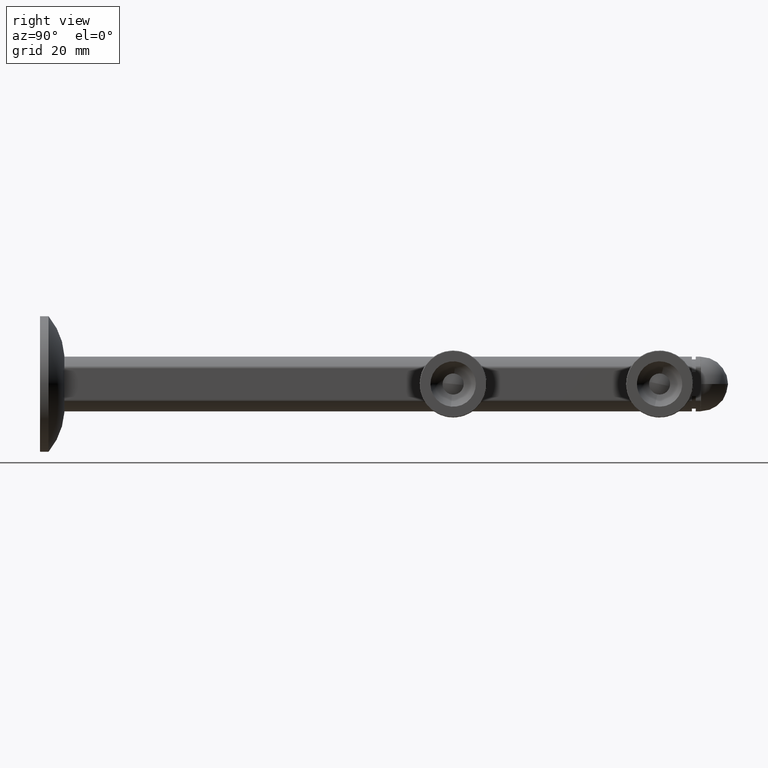
[diagram: clean part render]
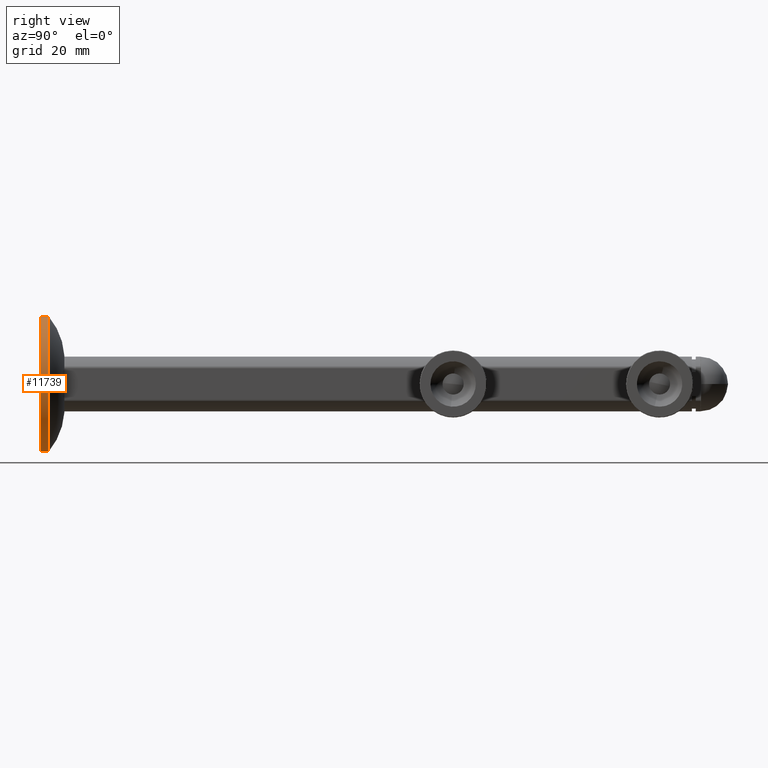
[diagram: same view with one face highlighted and labeled with its STEP entity id]
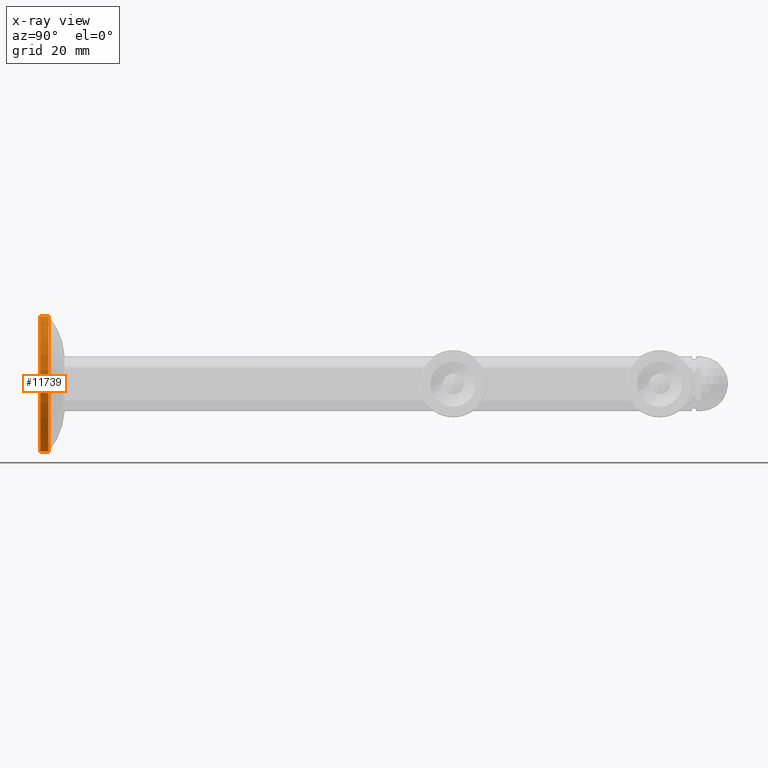
[diagram: x-ray of the same camera — body ghosted, the highlighted face saturated]
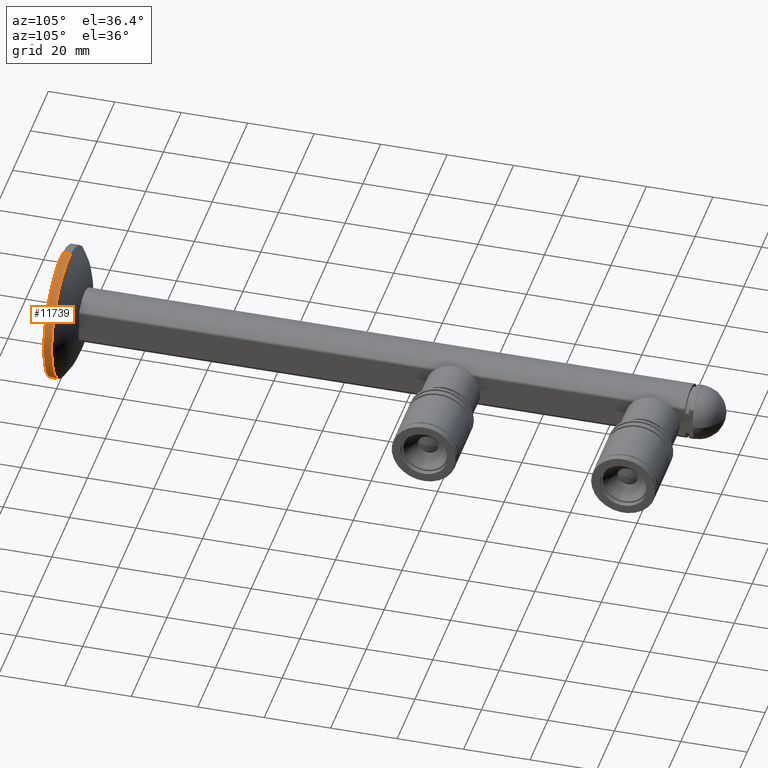
[diagram: same view with one face highlighted and labeled with its STEP entity id]
A machine part, right view. The second image highlights one B-rep face of the part: STEP entity #11739.
The next image is the same camera in x-ray: the body ghosted, the highlighted face saturated — about 0% of this face is hidden behind the body in this view.
A second angle (auxiliary view) of the same face is appended — the face is thin or edge-on in the first view.
In plain terms, the highlighted cylindrical surface (partial cylindrical patch) has radius 19.75 mm, axis along (0, -1, -0).
Its self-contained STEP definition (entity closure, byte-faithful):
#719 = EDGE_LOOP ( 'NONE', ( #8986, #10350, #1618, #5334 ) ) ;
#1015 = DIRECTION ( 'NONE',  ( 0.000000000000000000, 0.000000000000000000, -1.000000000000000000 ) ) ;
#1553 = DIRECTION ( 'NONE',  ( -0.000000000000000000, -1.000000000000000000, -0.000000000000000000 ) ) ;
#1618 = ORIENTED_EDGE ( 'NONE', *, *, #8809, .T. ) ;
#1625 = VERTEX_POINT ( 'NONE', #2080 ) ;
#2080 = CARTESIAN_POINT ( 'NONE',  ( 2.418677428316022726E-15, 0.09999999999999992228, 19.75000000000000000 ) ) ;
#2945 = DIRECTION ( 'NONE',  ( 0.000000000000000000, 0.000000000000000000, 1.000000000000000000 ) ) ;
#3166 = CARTESIAN_POINT ( 'NONE',  ( 0.000000000000000000, 2.453126927978501293, -19.75000000000000000 ) ) ;
#3932 = DIRECTION ( 'NONE',  ( 0.000000000000000000, 1.000000000000000000, 0.000000000000000000 ) ) ;
#4157 = CARTESIAN_POINT ( 'NONE',  ( 2.418677428316022726E-15, 2.453126927978501293, 19.75000000000000000 ) ) ;
#4762 = VERTEX_POINT ( 'NONE', #14533 ) ;
#4826 = VERTEX_POINT ( 'NONE', #4157 ) ;
#5311 = AXIS2_PLACEMENT_3D ( 'NONE', #19000, #11816, #2945 ) ;
#5334 = ORIENTED_EDGE ( 'NONE', *, *, #15674, .F. ) ;
#7056 = VERTEX_POINT ( 'NONE', #3166 ) ;
#7178 = CIRCLE ( 'NONE', #5311, 19.75000000000000000 ) ;
#7194 = CARTESIAN_POINT ( 'NONE',  ( 2.418677428316022726E-15, 0.000000000000000000, 19.75000000000000000 ) ) ;
#7766 = DIRECTION ( 'NONE',  ( -0.000000000000000000, -1.000000000000000000, -0.000000000000000000 ) ) ;
#7985 = VECTOR ( 'NONE', #1553, 1000.000000000000000 ) ;
#8809 = EDGE_CURVE ( 'NONE', #1625, #4762, #9598, .T. ) ;
#8986 = ORIENTED_EDGE ( 'NONE', *, *, #15677, .T. ) ;
#9302 = AXIS2_PLACEMENT_3D ( 'NONE', #11445, #3932, #1015 ) ;
#9598 = CIRCLE ( 'NONE', #9302, 19.75000000000000000 ) ;
#10350 = ORIENTED_EDGE ( 'NONE', *, *, #14889, .T. ) ;
#11166 = AXIS2_PLACEMENT_3D ( 'NONE', #12077, #7766, #17938 ) ;
#11170 = CYLINDRICAL_SURFACE ( 'NONE', #11166, 19.75000000000000000 ) ;
#11445 = CARTESIAN_POINT ( 'NONE',  ( 0.000000000000000000, 0.09999999999999992228, 0.000000000000000000 ) ) ;
#11739 = ADVANCED_FACE ( 'NONE', ( #18982 ), #11170, .T. ) ;
#11816 = DIRECTION ( 'NONE',  ( -0.000000000000000000, -1.000000000000000000, -0.000000000000000000 ) ) ;
#11902 = LINE ( 'NONE', #7194, #7985 ) ;
#11931 = DIRECTION ( 'NONE',  ( -0.000000000000000000, -1.000000000000000000, -0.000000000000000000 ) ) ;
#12077 = CARTESIAN_POINT ( 'NONE',  ( 0.000000000000000000, 0.000000000000000000, 0.000000000000000000 ) ) ;
#12238 = VECTOR ( 'NONE', #11931, 1000.000000000000000 ) ;
#14533 = CARTESIAN_POINT ( 'NONE',  ( 0.000000000000000000, 0.09999999999999992228, -19.75000000000000000 ) ) ;
#14889 = EDGE_CURVE ( 'NONE', #4826, #1625, #11902, .T. ) ;
#15674 = EDGE_CURVE ( 'NONE', #7056, #4762, #17317, .T. ) ;
#15677 = EDGE_CURVE ( 'NONE', #7056, #4826, #7178, .T. ) ;
#16132 = CARTESIAN_POINT ( 'NONE',  ( 0.000000000000000000, 0.000000000000000000, -19.75000000000000000 ) ) ;
#17317 = LINE ( 'NONE', #16132, #12238 ) ;
#17938 = DIRECTION ( 'NONE',  ( 0.000000000000000000, 0.000000000000000000, -1.000000000000000000 ) ) ;
#18982 = FACE_OUTER_BOUND ( 'NONE', #719, .T. ) ;
#19000 = CARTESIAN_POINT ( 'NONE',  ( 0.000000000000000000, 2.453126927978501293, 0.000000000000000000 ) ) ;